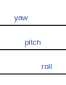
[diagram: root canvas - part 1/3, top center region]
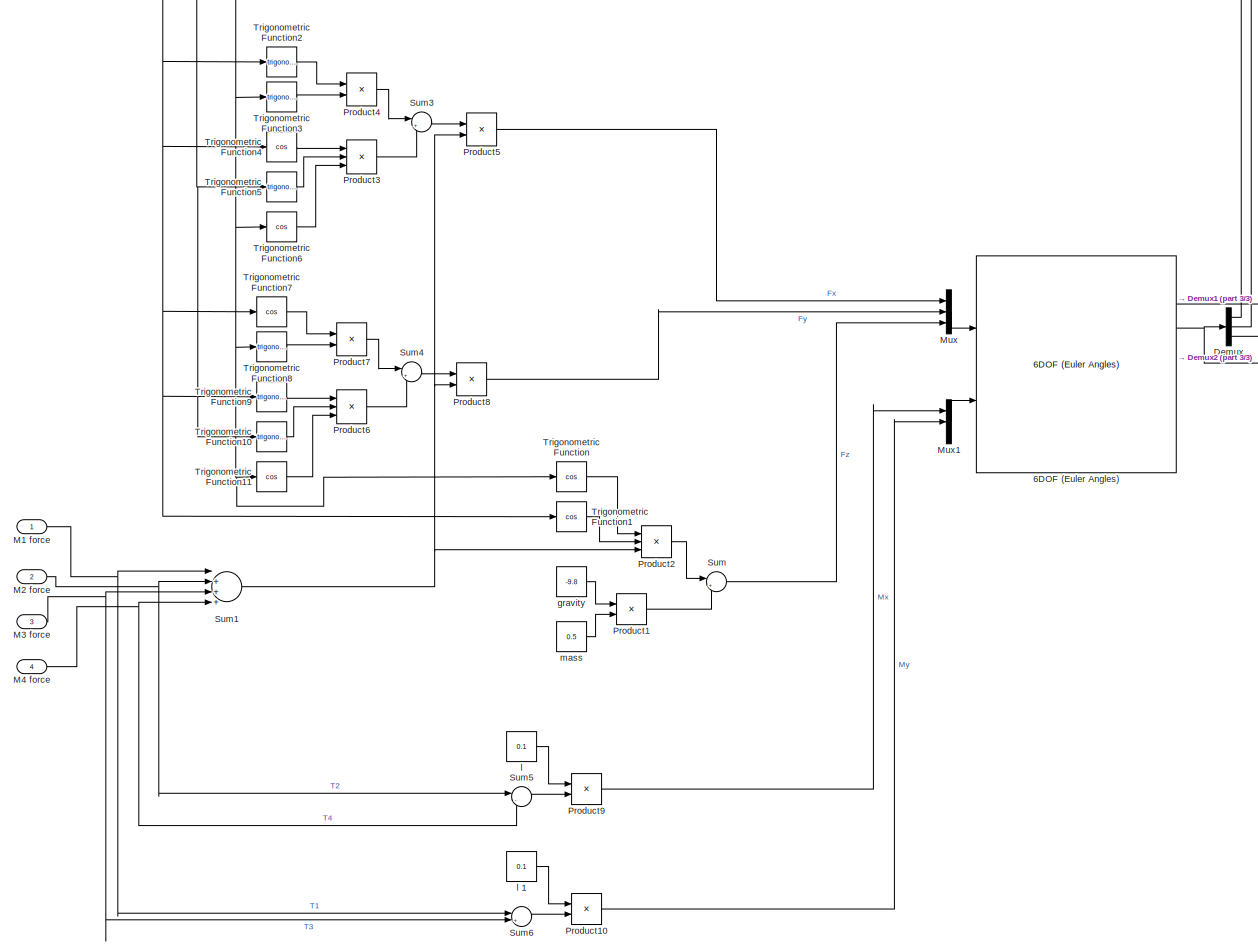
[diagram: root canvas - part 2/3, most of the canvas]
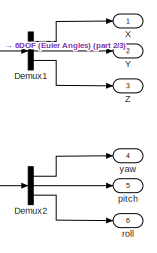
[diagram: root canvas - part 3/3, middle right region]
MODEL slx_5d97455586e9
KIND model
CONFIG AbsTol = auto
CONFIG EnableMultiTasking = off
CONFIG FixedStep = auto
CONFIG MaxStep = auto
CONFIG MinStep = auto
CONFIG RelTol = 1e-3
CONFIG SampleTimeConstraint = Unconstrained
CONFIG Solver = VariableStepAuto
CONFIG SolverName = VariableStepAuto
CONFIG StartTime = 0.0
CONFIG StopTime = 10.0
BLOCK [Reference] 6DOF (Euler Angles)  REF=shared6dof/6DOF (Euler Angles)
  Ports = [2, 8]
  SourceBlock = shared6dof/6DOF (Euler Angles)
  SourceProductBaseCode = AE
  SourceProductName = Aerospace Blockset
  SourceType = 6DOF EoM (Body Axis)
BLOCK [Demux] Demux
  DisplayOption = bar
  Outputs = 3
  Ports = [1, 3]
BLOCK [Demux] Demux1
  DisplayOption = bar
  Outputs = 3
  Ports = [1, 3]
BLOCK [Demux] Demux2
  DisplayOption = bar
  Outputs = 3
  Ports = [1, 3]
BLOCK [Inport] M1 force
  IconDisplay = Port number
BLOCK [Inport] M2 force
  IconDisplay = Port number
  Port = 2
BLOCK [Inport] M3 force
  IconDisplay = Port number
  Port = 3
BLOCK [Inport] M4 force
  IconDisplay = Port number
  Port = 4
BLOCK [Mux] Mux
  DisplayOption = bar
  Inputs = 3
  Ports = [3, 1]
BLOCK [Mux] Mux1
  DisplayOption = bar
  Inputs = 3
  Ports = [3, 1]
BLOCK [Product] Product1
  InputSameDT = off
  OutDataTypeStr = Inherit: Inherit via internal rule
  Ports = [2, 1]
  RndMeth = Floor
  SaturateOnIntegerOverflow = off
BLOCK [Product] Product10
  InputSameDT = off
  OutDataTypeStr = Inherit: Inherit via internal rule
  Ports = [2, 1]
  RndMeth = Floor
  SaturateOnIntegerOverflow = off
BLOCK [Product] Product2
  InputSameDT = off
  Inputs = 3
  OutDataTypeStr = Inherit: Inherit via internal rule
  Ports = [3, 1]
  RndMeth = Floor
  SaturateOnIntegerOverflow = off
BLOCK [Product] Product3
  InputSameDT = off
  Inputs = 3
  OutDataTypeStr = Inherit: Inherit via internal rule
  Ports = [3, 1]
  RndMeth = Floor
  SaturateOnIntegerOverflow = off
BLOCK [Product] Product4
  InputSameDT = off
  OutDataTypeStr = Inherit: Inherit via internal rule
  Ports = [2, 1]
  RndMeth = Floor
  SaturateOnIntegerOverflow = off
BLOCK [Product] Product5
  InputSameDT = off
  OutDataTypeStr = Inherit: Inherit via internal rule
  Ports = [2, 1]
  RndMeth = Floor
  SaturateOnIntegerOverflow = off
BLOCK [Product] Product6
  InputSameDT = off
  Inputs = 3
  OutDataTypeStr = Inherit: Inherit via internal rule
  Ports = [3, 1]
  RndMeth = Floor
  SaturateOnIntegerOverflow = off
BLOCK [Product] Product7
  InputSameDT = off
  OutDataTypeStr = Inherit: Inherit via internal rule
  Ports = [2, 1]
  RndMeth = Floor
  SaturateOnIntegerOverflow = off
BLOCK [Product] Product8
  InputSameDT = off
  OutDataTypeStr = Inherit: Inherit via internal rule
  Ports = [2, 1]
  RndMeth = Floor
  SaturateOnIntegerOverflow = off
BLOCK [Product] Product9
  InputSameDT = off
  OutDataTypeStr = Inherit: Inherit via internal rule
  Ports = [2, 1]
  RndMeth = Floor
  SaturateOnIntegerOverflow = off
BLOCK [Sum] Sum
  IconShape = round
  InputSameDT = off
  Inputs = |++
  OutDataTypeStr = Inherit: Inherit via internal rule
  Ports = [2, 1]
  SaturateOnIntegerOverflow = off
BLOCK [Sum] Sum1
  InputSameDT = off
  Inputs = |++++
  OutDataTypeStr = Inherit: Inherit via internal rule
  Ports = [4, 1]
  SaturateOnIntegerOverflow = off
BLOCK [Sum] Sum3
  IconShape = round
  InputSameDT = off
  Inputs = |++
  OutDataTypeStr = Inherit: Inherit via internal rule
  Ports = [2, 1]
  SaturateOnIntegerOverflow = off
BLOCK [Sum] Sum4
  IconShape = round
  InputSameDT = off
  Inputs = |++
  OutDataTypeStr = Inherit: Inherit via internal rule
  Ports = [2, 1]
  SaturateOnIntegerOverflow = off
BLOCK [Sum] Sum5
  IconShape = round
  InputSameDT = off
  Inputs = |-+
  OutDataTypeStr = Inherit: Inherit via internal rule
  Ports = [2, 1]
  SaturateOnIntegerOverflow = off
BLOCK [Sum] Sum6
  IconShape = round
  InputSameDT = off
  Inputs = |+-
  OutDataTypeStr = Inherit: Inherit via internal rule
  Ports = [2, 1]
  SaturateOnIntegerOverflow = off
BLOCK [Trigonometry] Trigonometric Function
  Operator = cos
  Ports = [1, 1]
BLOCK [Trigonometry] Trigonometric Function1
  Operator = cos
  Ports = [1, 1]
BLOCK [Trigonometry] Trigonometric Function10
  Ports = [1, 1]
BLOCK [Trigonometry] Trigonometric Function11
  Operator = cos
  Ports = [1, 1]
BLOCK [Trigonometry] Trigonometric Function2
  Ports = [1, 1]
BLOCK [Trigonometry] Trigonometric Function3
  Ports = [1, 1]
BLOCK [Trigonometry] Trigonometric Function4
  Operator = cos
  Ports = [1, 1]
BLOCK [Trigonometry] Trigonometric Function5
  Ports = [1, 1]
BLOCK [Trigonometry] Trigonometric Function6
  Operator = cos
  Ports = [1, 1]
BLOCK [Trigonometry] Trigonometric Function7
  Operator = cos
  Ports = [1, 1]
BLOCK [Trigonometry] Trigonometric Function8
  Ports = [1, 1]
BLOCK [Trigonometry] Trigonometric Function9
  Ports = [1, 1]
BLOCK [Outport] X
  IconDisplay = Port number
BLOCK [Outport] Y
  IconDisplay = Port number
  Port = 2
BLOCK [Outport] Z
  IconDisplay = Port number
  Port = 3
BLOCK [Constant] gravity
  Value = -9.8
BLOCK [Constant] l 
  Value = 0.1
BLOCK [Constant] l 1
  Value = 0.1
BLOCK [Constant] mass
  Value = 0.5
BLOCK [Outport] pitch
  IconDisplay = Port number
  Port = 5
BLOCK [Outport] roll
  IconDisplay = Port number
  Port = 6
BLOCK [Outport] yaw
  IconDisplay = Port number
  Port = 4
LINE 6DOF (Euler Angles):2 -> Demux1:1
NET 6DOF (Euler Angles):3 -> Demux2:1, Demux:1
LINE Demux1:1 -> X:1
LINE Demux1:2 -> Y:1
LINE Demux1:3 -> Z:1
LINE Demux2:1 -> yaw:1
LINE Demux2:2 -> pitch:1
LINE Demux2:3 -> roll:1
NET Demux:1 -> Trigonometric Function11:1, Trigonometric Function3:1, Trigonometric Function6:1, Trigonometric Function8:1, Trigonometric Function:1
NET Demux:2 -> Trigonometric Function10:1, Trigonometric Function5:1
NET Demux:3 -> Trigonometric Function1:1, Trigonometric Function2:1, Trigonometric Function4:1, Trigonometric Function7:1, Trigonometric Function9:1
NET M1 force:1 -> Sum1:1, Sum6:1
NET M2 force:1 -> Sum1:2, Sum5:1
NET M3 force:1 -> Sum1:3, Sum6:2
NET M4 force:1 -> Sum1:4, Sum5:2
LINE Mux1:1 -> 6DOF (Euler Angles):2
LINE Mux:1 -> 6DOF (Euler Angles):1
LINE Product10:1 -> Mux1:2
LINE Product1:1 -> Sum:2
LINE Product2:1 -> Sum:1
LINE Product3:1 -> Sum3:2
LINE Product4:1 -> Sum3:1
LINE Product5:1 -> Mux:1
LINE Product6:1 -> Sum4:2
LINE Product7:1 -> Sum4:1
LINE Product8:1 -> Mux:2
LINE Product9:1 -> Mux1:1
NET Sum1:1 -> Product2:3, Product5:2, Product8:2
LINE Sum3:1 -> Product5:1
LINE Sum4:1 -> Product8:1
LINE Sum5:1 -> Product9:2
LINE Sum6:1 -> Product10:2
LINE Sum:1 -> Mux:3
LINE Trigonometric Function10:1 -> Product6:2
LINE Trigonometric Function11:1 -> Product6:3
LINE Trigonometric Function1:1 -> Product2:2
LINE Trigonometric Function2:1 -> Product4:1
LINE Trigonometric Function3:1 -> Product4:2
LINE Trigonometric Function4:1 -> Product3:1
LINE Trigonometric Function5:1 -> Product3:2
LINE Trigonometric Function6:1 -> Product3:3
LINE Trigonometric Function7:1 -> Product7:1
LINE Trigonometric Function8:1 -> Product7:2
LINE Trigonometric Function9:1 -> Product6:1
LINE Trigonometric Function:1 -> Product2:1
LINE gravity:1 -> Product1:1
LINE l 1:1 -> Product10:1
LINE l :1 -> Product9:1
LINE mass:1 -> Product1:2
note: NET lines group one-source signal fan-out (src -> all destinations, sorted); 1:1 wires keep LINE
